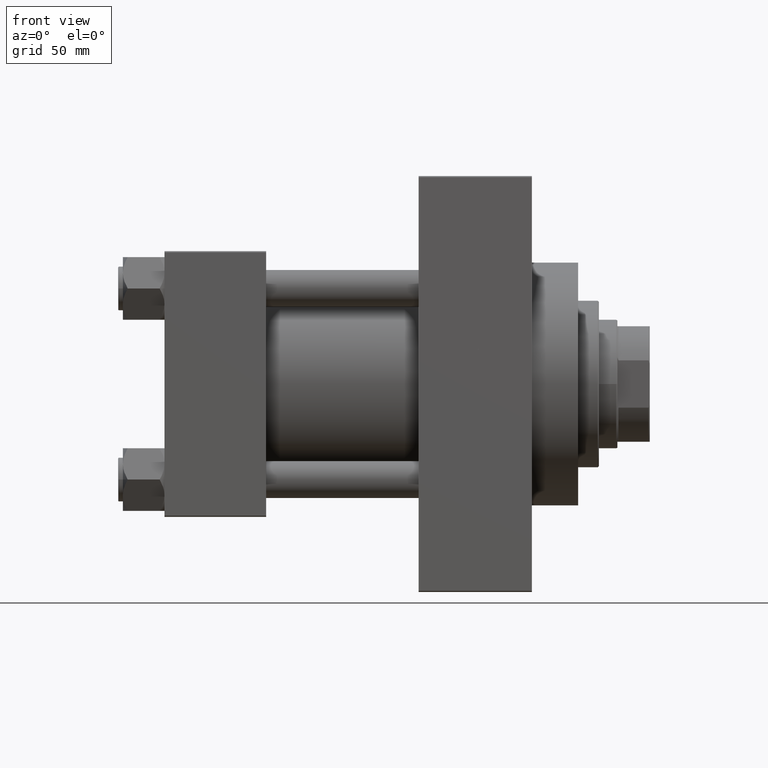
[diagram: clean part render]
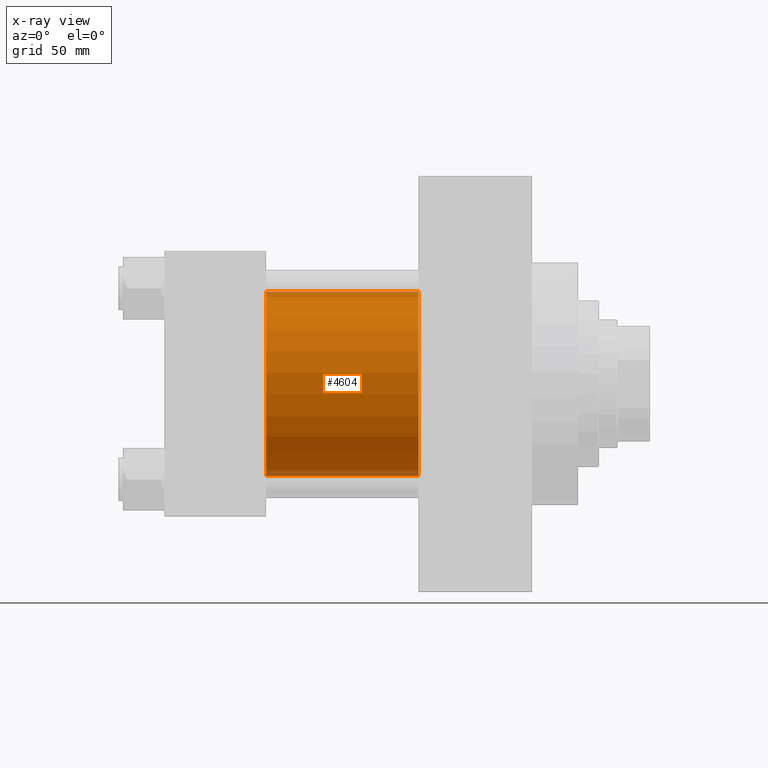
[diagram: x-ray — body ghosted, one internal face saturated and labeled with its STEP entity id]
A machine part, front view, then the same camera in x-ray: the body is ghosted and one INTERNAL B-rep face — a face not visible from any outside direction — is saturated and labeled: STEP entity #4604.
In plain terms, the highlighted cylindrical surface (partial cylindrical patch) has radius 40 mm, axis along (-1, -0, -0).
Its self-contained STEP definition (entity closure, byte-faithful):
#521 = VERTEX_POINT ( 'NONE', #33636 ) ;
#790 = AXIS2_PLACEMENT_3D ( 'NONE', #14509, #29865, #10467 ) ;
#1040 = CARTESIAN_POINT ( 'NONE',  ( 110.0000000000000000, -2.602085213965210642E-15, 0.000000000000000000 ) ) ;
#4604 = ADVANCED_FACE ( 'NONE', ( #20195 ), #35543, .F. ) ;
#7463 = EDGE_CURVE ( 'NONE', #36858, #49180, #14325, .T. ) ;
#8147 = EDGE_LOOP ( 'NONE', ( #9029, #11312, #46904, #26041 ) ) ;
#9029 = ORIENTED_EDGE ( 'NONE', *, *, #44559, .T. ) ;
#9433 = EDGE_CURVE ( 'NONE', #521, #36858, #47605, .T. ) ;
#10467 = DIRECTION ( 'NONE',  ( 0.000000000000000000, 0.000000000000000000, -1.000000000000000000 ) ) ;
#11312 = ORIENTED_EDGE ( 'NONE', *, *, #32813, .T. ) ;
#13151 = CARTESIAN_POINT ( 'NONE',  ( 44.00000000000000000, -2.602085213965210642E-15, 40.00000000000000000 ) ) ;
#13359 = DIRECTION ( 'NONE',  ( -1.000000000000000000, -0.000000000000000000, -0.000000000000000000 ) ) ;
#13618 = LINE ( 'NONE', #14556, #21373 ) ;
#14325 = CIRCLE ( 'NONE', #32016, 40.00000000000000000 ) ;
#14509 = CARTESIAN_POINT ( 'NONE',  ( 110.0000000000000000, -2.602085213965210642E-15, 0.000000000000000000 ) ) ;
#14556 = CARTESIAN_POINT ( 'NONE',  ( 110.0000000000000000, 2.296501982624201990E-15, -40.00000000000000000 ) ) ;
#18507 = CARTESIAN_POINT ( 'NONE',  ( 44.00000000000000000, 2.296501982624201990E-15, -40.00000000000000000 ) ) ;
#20107 = CIRCLE ( 'NONE', #790, 40.00000000000000000 ) ;
#20195 = FACE_OUTER_BOUND ( 'NONE', #8147, .T. ) ;
#21373 = VECTOR ( 'NONE', #45263, 1000.000000000000000 ) ;
#21905 = DIRECTION ( 'NONE',  ( 1.000000000000000000, 0.000000000000000000, 0.000000000000000000 ) ) ;
#22148 = DIRECTION ( 'NONE',  ( 0.000000000000000000, 0.000000000000000000, -1.000000000000000000 ) ) ;
#26041 = ORIENTED_EDGE ( 'NONE', *, *, #9433, .F. ) ;
#29865 = DIRECTION ( 'NONE',  ( 1.000000000000000000, 0.000000000000000000, 0.000000000000000000 ) ) ;
#31751 = DIRECTION ( 'NONE',  ( -1.000000000000000000, -0.000000000000000000, -0.000000000000000000 ) ) ;
#32016 = AXIS2_PLACEMENT_3D ( 'NONE', #41046, #21905, #22148 ) ;
#32813 = EDGE_CURVE ( 'NONE', #43795, #49180, #13618, .T. ) ;
#33636 = CARTESIAN_POINT ( 'NONE',  ( 110.0000000000000000, -2.602085213965210642E-15, 40.00000000000000000 ) ) ;
#35190 = VECTOR ( 'NONE', #13359, 1000.000000000000000 ) ;
#35543 = CYLINDRICAL_SURFACE ( 'NONE', #40811, 40.00000000000000000 ) ;
#36858 = VERTEX_POINT ( 'NONE', #13151 ) ;
#39797 = CARTESIAN_POINT ( 'NONE',  ( 110.0000000000000000, -2.602085213965210642E-15, 40.00000000000000000 ) ) ;
#40811 = AXIS2_PLACEMENT_3D ( 'NONE', #1040, #31751, #47115 ) ;
#41046 = CARTESIAN_POINT ( 'NONE',  ( 44.00000000000000000, -2.602085213965210642E-15, 0.000000000000000000 ) ) ;
#43795 = VERTEX_POINT ( 'NONE', #45147 ) ;
#44559 = EDGE_CURVE ( 'NONE', #521, #43795, #20107, .T. ) ;
#45147 = CARTESIAN_POINT ( 'NONE',  ( 110.0000000000000000, 2.296501982624201990E-15, -40.00000000000000000 ) ) ;
#45263 = DIRECTION ( 'NONE',  ( -1.000000000000000000, -0.000000000000000000, -0.000000000000000000 ) ) ;
#46904 = ORIENTED_EDGE ( 'NONE', *, *, #7463, .F. ) ;
#47115 = DIRECTION ( 'NONE',  ( 0.000000000000000000, 0.000000000000000000, 1.000000000000000000 ) ) ;
#47605 = LINE ( 'NONE', #39797, #35190 ) ;
#49180 = VERTEX_POINT ( 'NONE', #18507 ) ;